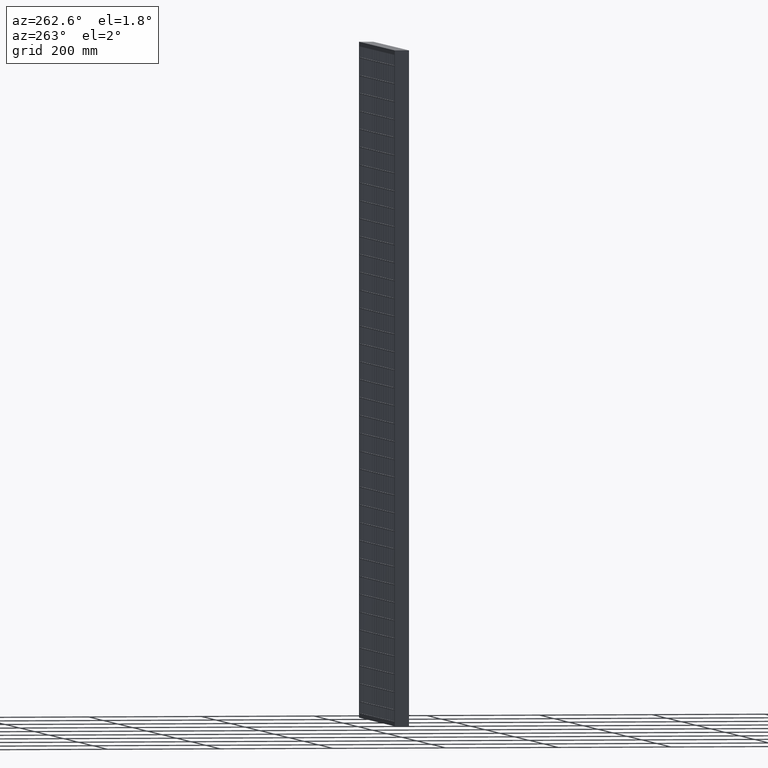
[diagram: clean part render]
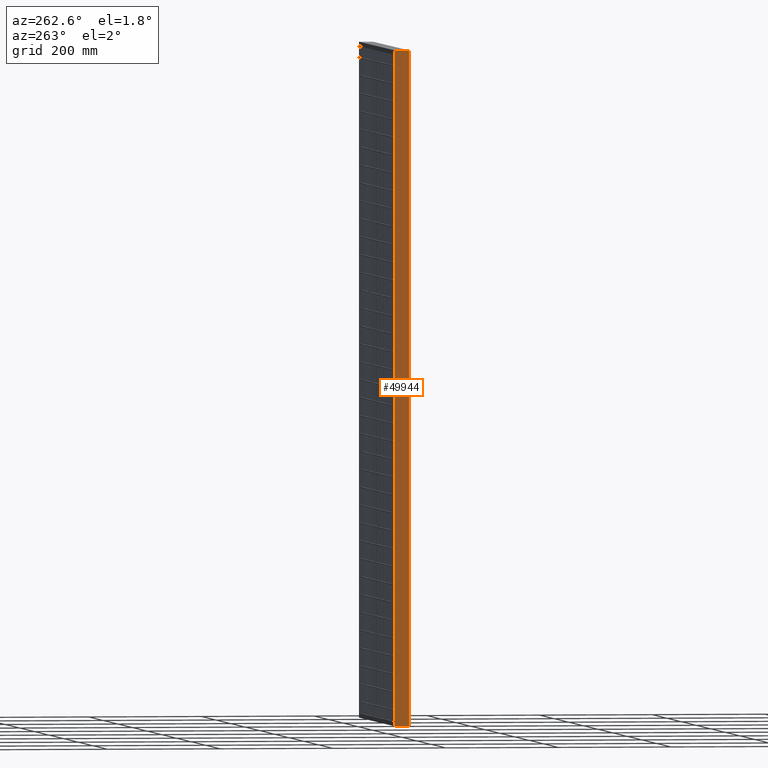
[diagram: same view with one face highlighted and labeled with its STEP entity id]
A machine part, auxiliary view. The second image highlights one B-rep face of the part: STEP entity #49944.
In plain terms, the highlighted planar face has unit normal (-1, -0, 0).
Its self-contained STEP definition (entity closure, byte-faithful):
#1623 = DIRECTION ( 'NONE',  ( -0.0000000000000000000, -0.0000000000000000000, 1.000000000000000000 ) ) ;
#6442 = CARTESIAN_POINT ( 'NONE',  ( 2.755455298081544800E-015, -12.50000000000000000, -1242.497618993626700 ) ) ;
#8882 = ORIENTED_EDGE ( 'NONE', *, *, #82908, .T. ) ;
#9435 = ORIENTED_EDGE ( 'NONE', *, *, #25325, .T. ) ;
#14579 = LINE ( 'NONE', #75694, #25754 ) ;
#16341 = PLANE ( 'NONE',  #67205 ) ;
#16992 = VERTEX_POINT ( 'NONE', #63354 ) ;
#17460 = DIRECTION ( 'NONE',  ( -1.000000000000000000, -3.061616997868383100E-016, 0.0000000000000000000 ) ) ;
#18258 = CARTESIAN_POINT ( 'NONE',  ( 1.377727649040772400E-015, -12.50000000000000000, -3.330669073875469600E-013 ) ) ;
#25325 = EDGE_CURVE ( 'NONE', #16992, #56304, #32341, .T. ) ;
#25754 = VECTOR ( 'NONE', #69734, 1000.000000000000000 ) ;
#27287 = CARTESIAN_POINT ( 'NONE',  ( -2.347239698365760600E-015, 4.166666666666667900, 0.0000000000000000000 ) ) ;
#30640 = CARTESIAN_POINT ( 'NONE',  ( 2.220446049250311100E-013, 12.50000000000000000, -2.208107026307505200E-013 ) ) ;
#30874 = VECTOR ( 'NONE', #77718, 1000.000000000000000 ) ;
#31079 = EDGE_CURVE ( 'NONE', #57040, #71905, #14579, .T. ) ;
#32341 = LINE ( 'NONE', #6442, #60727 ) ;
#34638 = EDGE_LOOP ( 'NONE', ( #9435, #8882, #35312, #72397 ) ) ;
#35312 = ORIENTED_EDGE ( 'NONE', *, *, #31079, .F. ) ;
#46250 = CARTESIAN_POINT ( 'NONE',  ( -4.898587196589417800E-015, 12.50000000000001600, -1190.000000000000000 ) ) ;
#47569 = FACE_OUTER_BOUND ( 'NONE', #34638, .T. ) ;
#49944 = ADVANCED_FACE ( 'NONE', ( #47569 ), #16341, .T. ) ;
#52800 = CARTESIAN_POINT ( 'NONE',  ( 2.220446049250311100E-013, 12.50000000000000000, -2.208107026307505200E-013 ) ) ;
#56304 = VERTEX_POINT ( 'NONE', #18258 ) ;
#57040 = VERTEX_POINT ( 'NONE', #71787 ) ;
#60441 = CARTESIAN_POINT ( 'NONE',  ( 2.041077998578923800E-016, -4.166666666666667900, 0.0000000000000000000 ) ) ;
#60727 = VECTOR ( 'NONE', #1623, 1000.000000000000000 ) ;
#61918 = EDGE_CURVE ( 'NONE', #57040, #16992, #77623, .T. ) ;
#63354 = CARTESIAN_POINT ( 'NONE',  ( 2.755455298081544800E-015, -12.50000000000000000, -1190.000000000000000 ) ) ;
#63382 = CARTESIAN_POINT ( 'NONE',  ( -4.898587196589413000E-015, 12.50000000000000000, -1242.497618993626700 ) ) ;
#67205 = AXIS2_PLACEMENT_3D ( 'NONE', #63382, #17460, #69368 ) ;
#69368 = DIRECTION ( 'NONE',  ( 3.061616997868383100E-016, -1.000000000000000000, 0.0000000000000000000 ) ) ;
#69734 = DIRECTION ( 'NONE',  ( -0.0000000000000000000, -0.0000000000000000000, 1.000000000000000000 ) ) ;
#71787 = CARTESIAN_POINT ( 'NONE',  ( -4.898587196589413000E-015, 12.50000000000000000, -1190.000000000000000 ) ) ;
#71905 = VERTEX_POINT ( 'NONE', #30640 ) ;
#72397 = ORIENTED_EDGE ( 'NONE', *, *, #61918, .T. ) ;
#75694 = CARTESIAN_POINT ( 'NONE',  ( -4.898587196589413000E-015, 12.50000000000000000, -1242.497618993626700 ) ) ;
#77623 = LINE ( 'NONE', #46250, #30874 ) ;
#77718 = DIRECTION ( 'NONE',  ( 3.061616997868383100E-016, -1.000000000000000000, 3.061616997868383100E-016 ) ) ;
#78614 = CARTESIAN_POINT ( 'NONE',  ( 1.377727649040772400E-015, -12.50000000000000000, -3.330669073875469600E-013 ) ) ;
#78884 = B_SPLINE_CURVE_WITH_KNOTS ( 'NONE', 3,
 ( #78614, #60441, #27287, #52800 ),
 .UNSPECIFIED., .F., .F.,
 ( 4, 4 ),
 ( 0.0000000000000000000, 1.000000000000000000 ),
 .UNSPECIFIED. ) ;
#82908 = EDGE_CURVE ( 'NONE', #56304, #71905, #78884, .T. ) ;